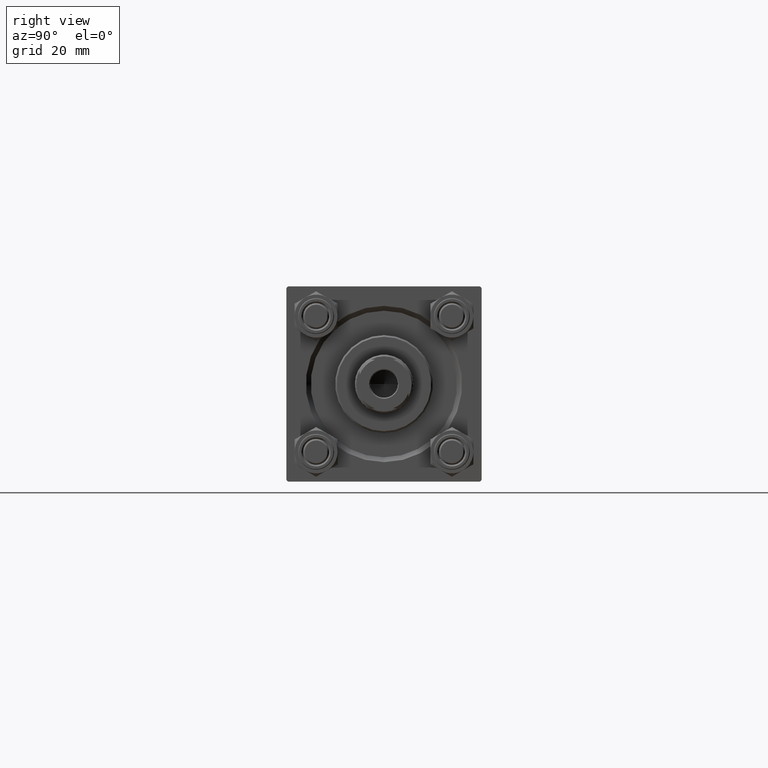
[diagram: clean part render]
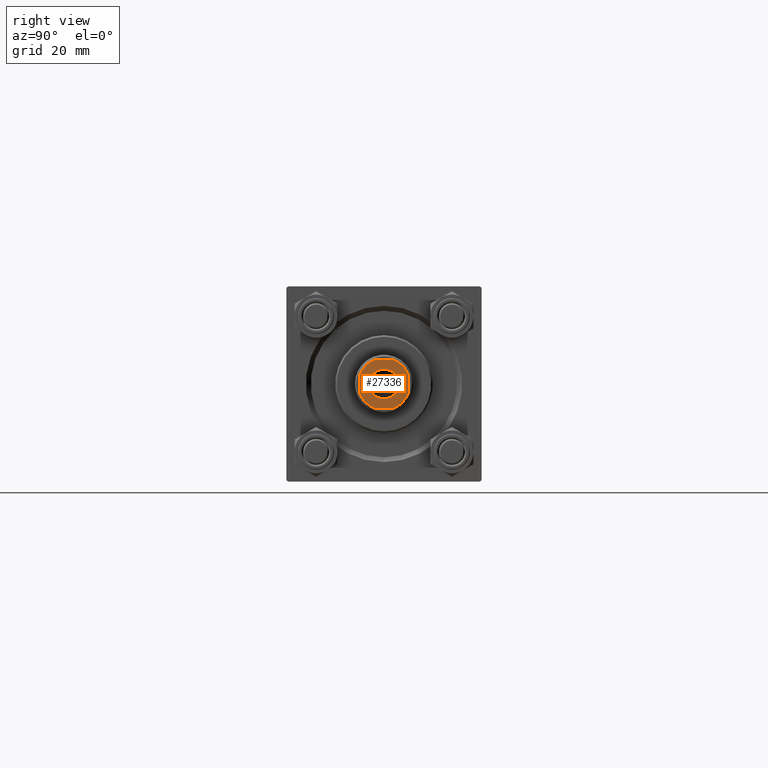
[diagram: same view with one face highlighted and labeled with its STEP entity id]
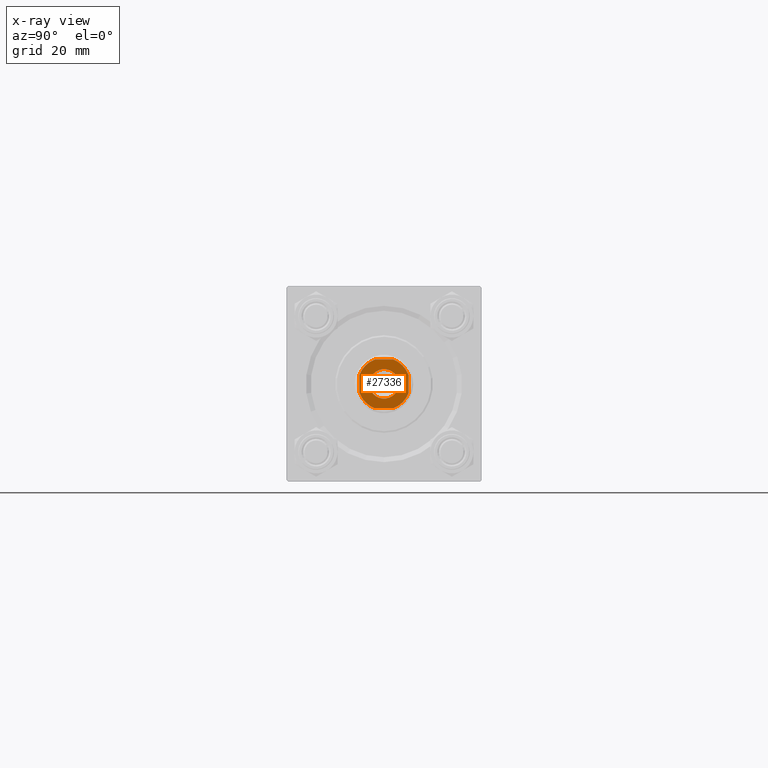
[diagram: x-ray of the same camera — body ghosted, the highlighted face saturated]
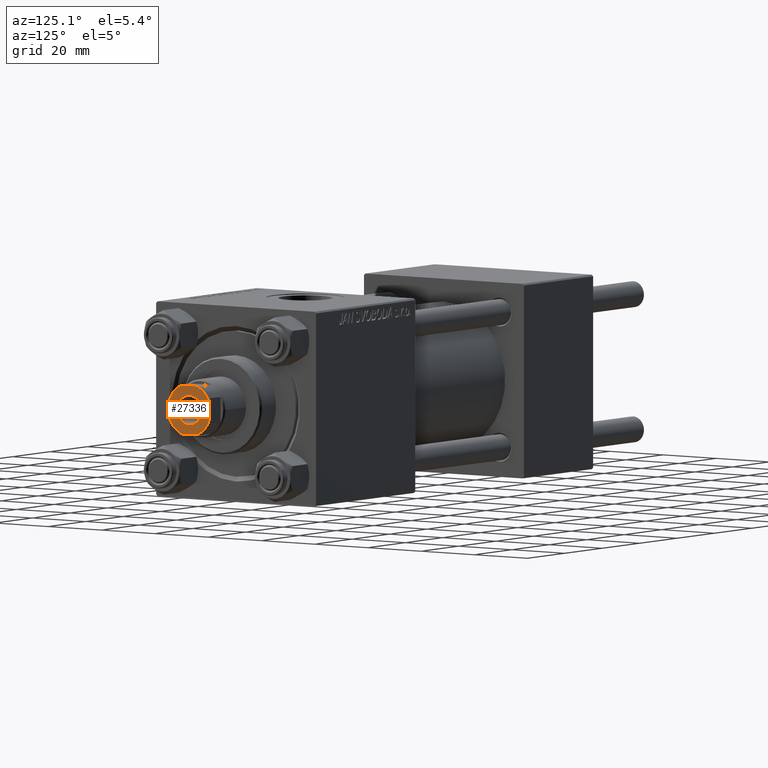
[diagram: same view with one face highlighted and labeled with its STEP entity id]
A machine part, right view. The second image highlights one B-rep face of the part: STEP entity #27336.
The next image is the same camera in x-ray: the body ghosted, the highlighted face saturated — about 0% of this face is hidden behind the body in this view.
A second angle (auxiliary view) of the same face is appended — the face is thin or edge-on in the first view.
In plain terms, the highlighted planar face has unit normal (1, 0, -0).
Its self-contained STEP definition (entity closure, byte-faithful):
#463 = DIRECTION ( 'NONE',  ( -1.156482317317871478E-16, 1.000000000000000000, -0.000000000000000000 ) ) ;
#974 = AXIS2_PLACEMENT_3D ( 'NONE', #36010, #28441, #44079 ) ;
#2581 = CIRCLE ( 'NONE', #25970, 7.999999999999979572 ) ;
#2635 = DIRECTION ( 'NONE',  ( 1.000000000000000000, 0.000000000000000000, 0.000000000000000000 ) ) ;
#3701 = VERTEX_POINT ( 'NONE', #45393 ) ;
#3725 = VECTOR ( 'NONE', #41551, 1000.000000000000000 ) ;
#4127 = FACE_BOUND ( 'NONE', #43828, .T. ) ;
#5682 = EDGE_CURVE ( 'NONE', #26423, #6445, #22697, .T. ) ;
#5920 = CIRCLE ( 'NONE', #19578, 8.000000000000040856 ) ;
#6338 = VERTEX_POINT ( 'NONE', #47602 ) ;
#6445 = VERTEX_POINT ( 'NONE', #45728 ) ;
#8057 = EDGE_CURVE ( 'NONE', #44076, #3701, #22736, .T. ) ;
#8550 = DIRECTION ( 'NONE',  ( 1.000000000000000000, 0.000000000000000000, 0.000000000000000000 ) ) ;
#8628 = CARTESIAN_POINT ( 'NONE',  ( -2.783882181414952139, -7.500000000000000000, 136.0000000000000000 ) ) ;
#9836 = EDGE_CURVE ( 'NONE', #6445, #18548, #39247, .T. ) ;
#10891 = VECTOR ( 'NONE', #13893, 1000.000000000000000 ) ;
#12083 = CARTESIAN_POINT ( 'NONE',  ( 7.500000000000000000, 7.500000000000000000, 136.0000000000000000 ) ) ;
#12457 = EDGE_CURVE ( 'NONE', #3701, #44076, #23102, .T. ) ;
#13893 = DIRECTION ( 'NONE',  ( -1.000000000000000000, -1.156482317317871478E-16, -0.000000000000000000 ) ) ;
#14174 = VERTEX_POINT ( 'NONE', #29085 ) ;
#14897 = CARTESIAN_POINT ( 'NONE',  ( 0.000000000000000000, 0.000000000000000000, 136.0000000000000000 ) ) ;
#15870 = ORIENTED_EDGE ( 'NONE', *, *, #12457, .T. ) ;
#16616 = CARTESIAN_POINT ( 'NONE',  ( 0.000000000000000000, 0.000000000000000000, 136.0000000000000000 ) ) ;
#16721 = AXIS2_PLACEMENT_3D ( 'NONE', #37185, #28882, #48793 ) ;
#17789 = AXIS2_PLACEMENT_3D ( 'NONE', #31643, #40455, #25822 ) ;
#18039 = ORIENTED_EDGE ( 'NONE', *, *, #27192, .T. ) ;
#18327 = VERTEX_POINT ( 'NONE', #19579 ) ;
#18488 = ORIENTED_EDGE ( 'NONE', *, *, #8057, .T. ) ;
#18548 = VERTEX_POINT ( 'NONE', #49240 ) ;
#18574 = LINE ( 'NONE', #33214, #40651 ) ;
#19151 = LINE ( 'NONE', #12083, #34822 ) ;
#19515 = FACE_OUTER_BOUND ( 'NONE', #24651, .T. ) ;
#19578 = AXIS2_PLACEMENT_3D ( 'NONE', #14897, #46408, #38580 ) ;
#19579 = CARTESIAN_POINT ( 'NONE',  ( 7.500000000000000888, 2.783882181415126222, 136.0000000000000000 ) ) ;
#19766 = CARTESIAN_POINT ( 'NONE',  ( 0.000000000000000000, 0.000000000000000000, 136.0000000000000000 ) ) ;
#19814 = VERTEX_POINT ( 'NONE', #28349 ) ;
#21279 = ORIENTED_EDGE ( 'NONE', *, *, #30907, .T. ) ;
#21906 = ORIENTED_EDGE ( 'NONE', *, *, #36026, .T. ) ;
#22280 = ORIENTED_EDGE ( 'NONE', *, *, #33636, .T. ) ;
#22697 = LINE ( 'NONE', #41625, #10891 ) ;
#22736 = CIRCLE ( 'NONE', #974, 4.549999999999970512 ) ;
#23102 = CIRCLE ( 'NONE', #27952, 4.549999999999970512 ) ;
#23454 = VERTEX_POINT ( 'NONE', #8628 ) ;
#24042 = EDGE_CURVE ( 'NONE', #19814, #14174, #39555, .T. ) ;
#24651 = EDGE_LOOP ( 'NONE', ( #21279, #22280, #31603, #46161, #26695, #18039, #21906, #33624 ) ) ;
#25822 = DIRECTION ( 'NONE',  ( 1.000000000000000000, 0.000000000000000000, 0.000000000000000000 ) ) ;
#25970 = AXIS2_PLACEMENT_3D ( 'NONE', #32678, #40248, #2635 ) ;
#26423 = VERTEX_POINT ( 'NONE', #41982 ) ;
#26695 = ORIENTED_EDGE ( 'NONE', *, *, #43948, .T. ) ;
#27192 = EDGE_CURVE ( 'NONE', #6338, #23454, #2581, .T. ) ;
#27336 = ADVANCED_FACE ( 'NONE', ( #4127, #19515 ), #34913, .T. ) ;
#27952 = AXIS2_PLACEMENT_3D ( 'NONE', #16616, #43614, #8550 ) ;
#28349 = CARTESIAN_POINT ( 'NONE',  ( 2.783882181415132440, -7.500000000000000000, 136.0000000000000000 ) ) ;
#28441 = DIRECTION ( 'NONE',  ( 0.000000000000000000, -0.000000000000000000, -1.000000000000000000 ) ) ;
#28882 = DIRECTION ( 'NONE',  ( -0.000000000000000000, 0.000000000000000000, 1.000000000000000000 ) ) ;
#29085 = CARTESIAN_POINT ( 'NONE',  ( 7.500000000000000888, -2.783882181415129331, 136.0000000000000000 ) ) ;
#30907 = EDGE_CURVE ( 'NONE', #14174, #18327, #19151, .T. ) ;
#31118 = DIRECTION ( 'NONE',  ( -0.000000000000000000, 0.000000000000000000, 1.000000000000000000 ) ) ;
#31603 = ORIENTED_EDGE ( 'NONE', *, *, #5682, .T. ) ;
#31643 = CARTESIAN_POINT ( 'NONE',  ( 0.000000000000000000, 0.000000000000000000, 136.0000000000000000 ) ) ;
#32678 = CARTESIAN_POINT ( 'NONE',  ( 0.000000000000000000, 0.000000000000000000, 136.0000000000000000 ) ) ;
#33214 = CARTESIAN_POINT ( 'NONE',  ( -7.499999999999998224, -7.500000000000000000, 136.0000000000000000 ) ) ;
#33624 = ORIENTED_EDGE ( 'NONE', *, *, #24042, .T. ) ;
#33636 = EDGE_CURVE ( 'NONE', #18327, #26423, #5920, .T. ) ;
#34822 = VECTOR ( 'NONE', #463, 1000.000000000000000 ) ;
#34913 = PLANE ( 'NONE',  #43705 ) ;
#35980 = CARTESIAN_POINT ( 'NONE',  ( 4.549999999999970512, 0.000000000000000000, 136.0000000000000000 ) ) ;
#36010 = CARTESIAN_POINT ( 'NONE',  ( 0.000000000000000000, 0.000000000000000000, 136.0000000000000000 ) ) ;
#36026 = EDGE_CURVE ( 'NONE', #23454, #19814, #18574, .T. ) ;
#37185 = CARTESIAN_POINT ( 'NONE',  ( 0.000000000000000000, 0.000000000000000000, 136.0000000000000000 ) ) ;
#38580 = DIRECTION ( 'NONE',  ( 1.000000000000000000, 0.000000000000000000, 0.000000000000000000 ) ) ;
#39247 = CIRCLE ( 'NONE', #16721, 7.999999999999981348 ) ;
#39555 = CIRCLE ( 'NONE', #17789, 8.000000000000042633 ) ;
#40248 = DIRECTION ( 'NONE',  ( -0.000000000000000000, 0.000000000000000000, 1.000000000000000000 ) ) ;
#40455 = DIRECTION ( 'NONE',  ( -0.000000000000000000, 0.000000000000000000, 1.000000000000000000 ) ) ;
#40651 = VECTOR ( 'NONE', #48849, 1000.000000000000000 ) ;
#41301 = LINE ( 'NONE', #41801, #3725 ) ;
#41551 = DIRECTION ( 'NONE',  ( 1.156482317317871725E-16, -1.000000000000000000, 0.000000000000000000 ) ) ;
#41625 = CARTESIAN_POINT ( 'NONE',  ( -7.500000000000000000, 7.499999999999998224, 136.0000000000000000 ) ) ;
#41801 = CARTESIAN_POINT ( 'NONE',  ( -7.500000000000000000, 7.499999999999998224, 136.0000000000000000 ) ) ;
#41982 = CARTESIAN_POINT ( 'NONE',  ( 2.783882181415129331, 7.499999999999999112, 136.0000000000000000 ) ) ;
#43614 = DIRECTION ( 'NONE',  ( 0.000000000000000000, -0.000000000000000000, -1.000000000000000000 ) ) ;
#43705 = AXIS2_PLACEMENT_3D ( 'NONE', #19766, #31118, #46765 ) ;
#43828 = EDGE_LOOP ( 'NONE', ( #18488, #15870 ) ) ;
#43948 = EDGE_CURVE ( 'NONE', #18548, #6338, #41301, .T. ) ;
#44076 = VERTEX_POINT ( 'NONE', #35980 ) ;
#44079 = DIRECTION ( 'NONE',  ( 1.000000000000000000, 0.000000000000000000, 0.000000000000000000 ) ) ;
#45393 = CARTESIAN_POINT ( 'NONE',  ( -4.549999999999970512, 5.572142936120421828E-16, 136.0000000000000000 ) ) ;
#45728 = CARTESIAN_POINT ( 'NONE',  ( -2.783882181414960577, 7.499999999999999112, 136.0000000000000000 ) ) ;
#46161 = ORIENTED_EDGE ( 'NONE', *, *, #9836, .T. ) ;
#46408 = DIRECTION ( 'NONE',  ( -0.000000000000000000, 0.000000000000000000, 1.000000000000000000 ) ) ;
#46765 = DIRECTION ( 'NONE',  ( 1.000000000000000000, 0.000000000000000000, 0.000000000000000000 ) ) ;
#47602 = CARTESIAN_POINT ( 'NONE',  ( -7.499999999999997335, -2.783882181414957468, 136.0000000000000000 ) ) ;
#48793 = DIRECTION ( 'NONE',  ( 1.000000000000000000, 0.000000000000000000, 0.000000000000000000 ) ) ;
#48849 = DIRECTION ( 'NONE',  ( 1.000000000000000000, 0.000000000000000000, 0.000000000000000000 ) ) ;
#49240 = CARTESIAN_POINT ( 'NONE',  ( -7.499999999999999112, 2.783882181414961021, 136.0000000000000000 ) ) ;